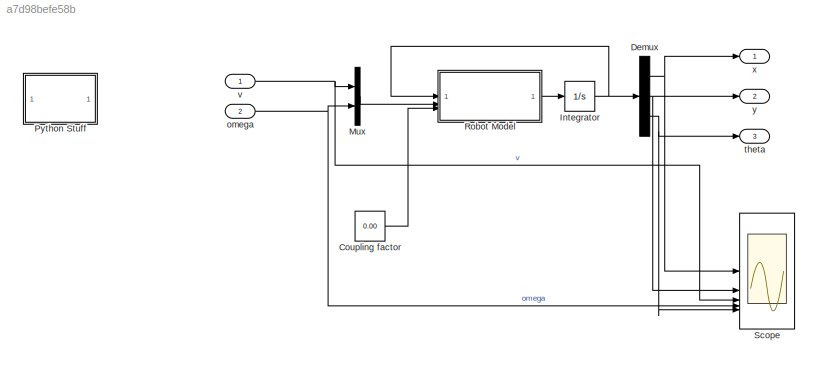
MODEL slx_a7d98befe58b
KIND model
CONFIG AbsTol = auto
CONFIG EnableMultiTasking = off
CONFIG FixedStep = 0.01
CONFIG MaxStep = auto
CONFIG MinStep = auto
CONFIG RelTol = 1e-3
CONFIG SampleTimeConstraint = Unconstrained
CONFIG SolverName = FixedStepAuto
CONFIG StartTime = 0.0
CONFIG StopTime = 10
BLOCK [Constant] Coupling factor
  Value = 0.00
BLOCK [Demux] Demux
  Outputs = 3
BLOCK [Integrator] Integrator
  InitialCondition = [0; 0;0]
BLOCK [Mux] Mux
  DisplayOption = bar
  Inputs = 2
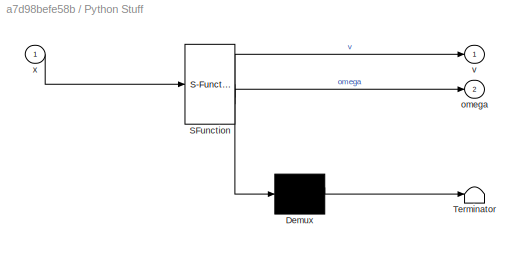
BLOCK [SubSystem] Python Stuff
  ErrorFcn = Stateflow.Translate.translate
  PermitHierarchicalResolution = ExplicitOnly
  SFBlockType = MATLAB Function
  TreatAsAtomicUnit = on
BLOCK [Demux] Python Stuff/ Demux 
  Outputs = 1
BLOCK [S-Function] Python Stuff/ SFunction 
  EnableBusSupport = on
  FunctionName = sf_sfun
  PortCounts = [1 3]
  SFcnIsStateOwnerBlock = off
  SFunctionDeploymentMode = off
  Tag = Stateflow S-Function 7
BLOCK [Terminator] Python Stuff/ Terminator 
BLOCK [Outport] Python Stuff/omega
  Port = 2
BLOCK [Outport] Python Stuff/v
BLOCK [Inport] Python Stuff/x
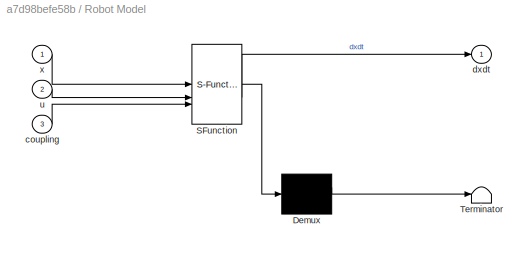
BLOCK [SubSystem] Robot Model
  ErrorFcn = Stateflow.Translate.translate
  PermitHierarchicalResolution = ExplicitOnly
  SFBlockType = MATLAB Function
  TreatAsAtomicUnit = on
BLOCK [Demux] Robot Model/ Demux 
  Outputs = 1
BLOCK [S-Function] Robot Model/ SFunction 
  EnableBusSupport = on
  FunctionName = sf_sfun
  PortCounts = [3 2]
  SFcnIsStateOwnerBlock = off
  SFunctionDeploymentMode = off
  Tag = Stateflow S-Function 2
BLOCK [Terminator] Robot Model/ Terminator 
BLOCK [Inport] Robot Model/coupling
  Port = 3
BLOCK [Outport] Robot Model/dxdt
BLOCK [Inport] Robot Model/u
  Port = 2
BLOCK [Inport] Robot Model/x
BLOCK [Scope] Scope
  Floating = off
  NumInputPorts = 5
  ScopeSpecificationString = Simulink.scopes.TimeScopeBlockCfg('CurrentConfiguration', extmgr.ConfigurationSet(extmgr.Configuration('Core','General UI',true),extmgr.Configuration('Core','Source UI',true),extmgr.Configuration('Sources','WiredSimulink',true,'DataLoggingVariableName','ScopeData1'),extmgr.Configuration('Visuals','Time Domain',true,'SerializedDisplays',{struct('MinYLimReal','-9.81101','MaxYLimReal','9.80052','YLab...<+1544ch>
BLOCK [Inport] omega
  OutDataTypeStr = double
  Port = 2
  SignalType = real
  Unit = rad/s
  VarSizeSig = No
BLOCK [Outport] theta
  OutDataTypeStr = double
  Port = 3
  SignalType = real
  Unit = rad
  VarSizeSig = No
BLOCK [Inport] v
  OutDataTypeStr = double
  SignalType = real
  Unit = mm/s
  VarSizeSig = No
BLOCK [Outport] x
  OutDataTypeStr = double
  SignalType = real
  Unit = mm
  VarSizeSig = No
BLOCK [Outport] y
  OutDataTypeStr = double
  Port = 2
  SignalType = real
  Unit = mm
  VarSizeSig = No
LINE Coupling factor:1 -> Robot Model:3
NET Demux:1 -> Scope:1, x:1
NET Demux:2 -> Scope:2, y:1
NET Demux:3 -> Scope:5, theta:1
NET Integrator:1 -> Demux:1, Robot Model:1
LINE Mux:1 -> Robot Model:2
LINE Robot Model:1 -> Integrator:1
NET omega:1 -> Mux:2, Scope:4
NET v:1 -> Mux:1, Scope:3
note: NET lines group one-source signal fan-out (src -> all destinations, sorted); 1:1 wires keep LINE
CHART Python Stuff states=1 transitions=1
  STATE_LABEL 'eML_blk_kernel()'
  STATE_LABEL 'SCRIPT:\nfunction [v, omega] = fcn(x)\n\n    v = 0;\n    omega = 0;\nend'
CHART Robot Model states=1 transitions=1
  STATE_LABEL 'eML_blk_kernel()'
  STATE_LABEL 'SCRIPT:\nfunction dxdt = fcn(x,u,coupling)\nv = u(1);\nomega = u(2);\ntheta = x(3);\nomega = omega + coupling*v;\nv = v + coupling*omega;\nx_dot = v * cos(theta);\ny_dot = v * sin(theta);\ntheta_dot = omega;\ndxdt = [x_dot; y_dot; theta_dot];\n'
CHART  states=0 transitions=0
CHART  states=0 transitions=0
